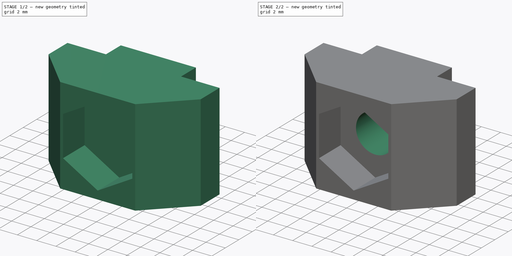
[diagram: build sequence overview — one tinted view per stage of 2, left to right]
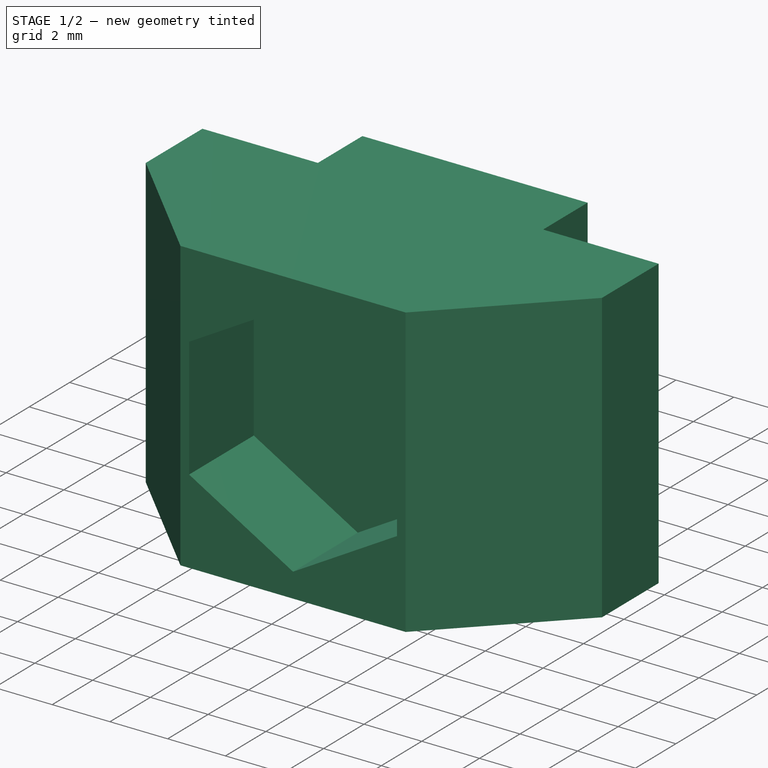
[diagram: stage 1 of 2 — iso view after this stage's code; geometry added in this stage tinted green]
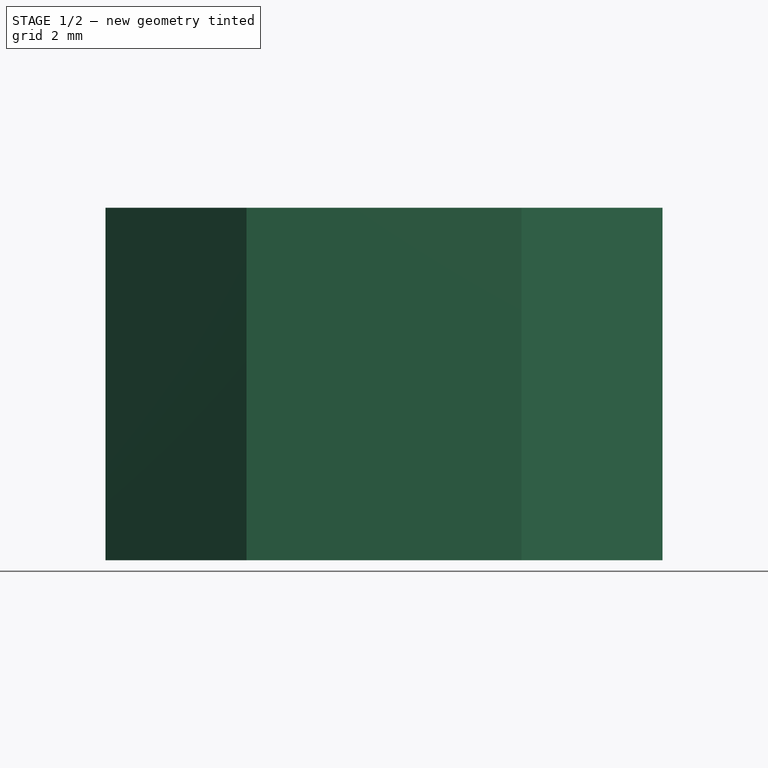
[diagram: stage 1 of 2 — front view after this stage's code; geometry added in this stage tinted green]
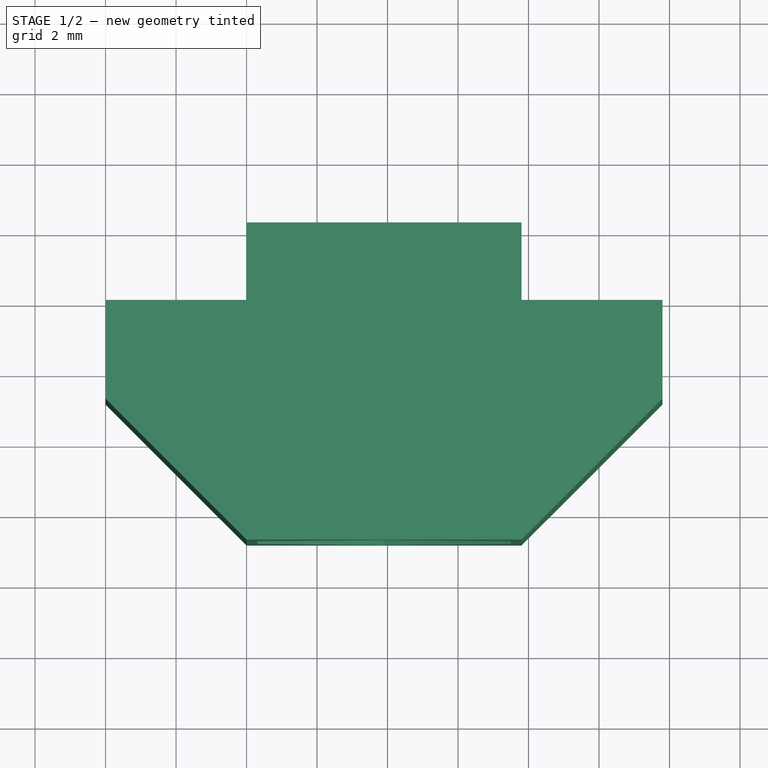
[diagram: stage 1 of 2 — top view after this stage's code; geometry added in this stage tinted green]
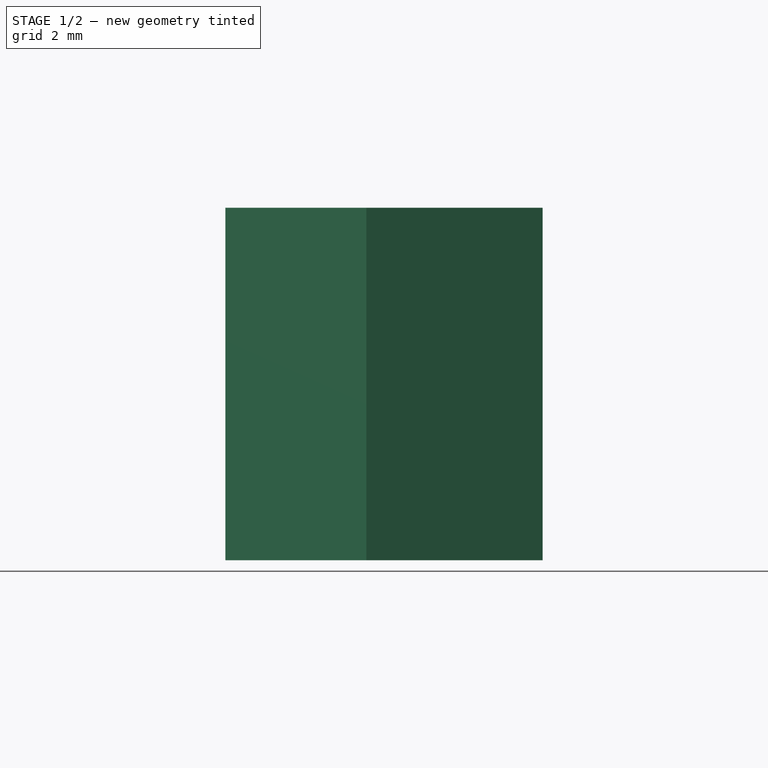
[diagram: stage 1 of 2 — right view after this stage's code; geometry added in this stage tinted green]
FCSTD DOCUMENT  (FreeCAD 0.19R23463 (Git))
Label: 3030_nut_adapter
License: All rights reserved
LicenseURL: http://en.wikipedia.org/wiki/All_rights_reserved
objects: Sketcher::SketchObject×3, PartDesign::Pocket×2, Spreadsheet::Sheet×1, PartDesign::Pad×1, PartDesign::Plane×1, PartDesign::Body×1
note: 11 computed .brp shape members not serialized (recipe doc carries the construction recipe); baked Part::Feature solids carry a one-line shape summary decoded from their .brp

FEATURE [Sketcher::SketchObject] Sketch
  MapMode = 5
  Support = -> [XY_Plane]
  expr: Constraints[18] = 8mm - <<sp>>.B1
  expr: Constraints[30] = 7mm - <<sp>>.B1
  expr: Constraints[2] = 16mm - <<sp>>.B1
  expr: Constraints[5] = 90 + 45
  sketch-geometry (11):
    g0: LineSegment StartX=0 StartY=0 StartZ=0 EndX=0 EndY=-2.8 EndZ=0
    g1: LineSegment StartX=15.8 StartY=-2e-16 StartZ=0 EndX=15.8 EndY=-2.8 EndZ=0
    g2: LineSegment StartX=0 StartY=-2.8 StartZ=0 EndX=4 EndY=-6.8 EndZ=0
    g3: LineSegment StartX=15.8 StartY=-2.8 StartZ=0 EndX=11.8 EndY=-6.8 EndZ=0
    g4: LineSegment StartX=4 StartY=-6.8 StartZ=0 EndX=11.8 EndY=-6.8 EndZ=0
    g5: LineSegment StartX=0 StartY=0 StartZ=0 EndX=4 EndY=0 EndZ=0
    g6: LineSegment StartX=15.8 StartY=-2e-16 StartZ=0 EndX=11.8 EndY=0 EndZ=0
    g7: LineSegment StartX=4 StartY=0 StartZ=0 EndX=11.8 EndY=0 EndZ=0
    g8: LineSegment StartX=4 StartY=0 StartZ=0 EndX=4 EndY=2.2 EndZ=0
    g9: LineSegment StartX=11.8 StartY=0 StartZ=0 EndX=11.8 EndY=2.2 EndZ=0
    g10: LineSegment StartX=11.8 StartY=2.2 StartZ=0 EndX=4 EndY=2.2 EndZ=0
  constraints (31):
    c: Vertical(g0)
    c: Vertical(g1)
    c: DistanceX(g0,g1) = 15.8
    c: Coincident(g2,g0)
    c: Coincident(g3,g1)
    c: Angle(g2,g0) = 2.35619
    c: Angle(g1,g3) = 2.35619
    c: Equal(g0,g1)
    c: Equal(g2,g3)
    c: Coincident(g4,g2)
    c: Coincident(g4,g3)
    c: Coincident(g5,g0)
    c: Horizontal(g5)
    c: Coincident(g6,g1)
    c: Equal(g5,g6)
    c: Coincident(g7,g5)
    c: Coincident(g7,g6)
    c: Horizontal(g7)
    c: DistanceX(g7,g7) = 7.8
    c: Coincident(g8,g5)
    c: Vertical(g8)
    c: Coincident(g9,g6)
    c: Vertical(g9)
    c: Coincident(g10,g9)
    c: Coincident(g10,g8)
    c: Horizontal(g10)
    c: DistanceY(g9,g9) = 2.2
    c: Horizontal(g4)
    c: Coincident(g0,g-1)
    c: Equal(g4,g7)
    c: DistanceY(g3,g1) = 6.8
FEATURE [Spreadsheet::Sheet] Spreadsheet  label="sp"
  cells = A1=Tolerancia; B1==0.2mm
FEATURE [PartDesign::Pad] Pad
  Direction = (1,1,1)
  Length = 10
  Length2 = 100
  Profile = -> Sketch
  Type = 0
FEATURE [PartDesign::Plane] DatumPlane
  Length = 60
  MapMode = 5
  Placement = pos=(0,-6.8,0) rot=(1,0,0;1.5708rad)
  ResizeMode = 0
  Support = -> [Pad]
  Width = 60
FEATURE [Sketcher::SketchObject] Sketch001
  ExternalGeometry = -> [Pad]
  MapMode = 5
  Placement = pos=(0,-6.8,0) rot=(1,0,0;1.5708rad)
  Support = -> [DatumPlane]
  sketch-geometry (9):
    g0: LineSegment StartX=11.5 StartY=7.07846 StartZ=0 EndX=7.9 EndY=9.15692 EndZ=0
    g1: LineSegment StartX=7.9 StartY=9.15692 StartZ=0 EndX=4.3 EndY=7.07846 EndZ=0
    g2: LineSegment StartX=4.3 StartY=7.07846 StartZ=0 EndX=4.3 EndY=2.92154 EndZ=0
    g3: LineSegment StartX=4.3 StartY=2.92154 StartZ=0 EndX=7.9 EndY=0.843078 EndZ=0
    g4: LineSegment StartX=7.9 StartY=0.843078 StartZ=0 EndX=11.5 EndY=2.92154 EndZ=0
    g5: LineSegment StartX=11.5 StartY=2.92154 StartZ=0 EndX=11.5 EndY=7.07846 EndZ=0
    g6: Circle CenterX=7.9 CenterY=5 CenterZ=0 NormalX=0 NormalY=0 NormalZ=1 AngleXU=0 Radius=4.15692
    g7: LineSegment StartX=4 StartY=10 StartZ=0 EndX=11.8 EndY=0 EndZ=0
    g8: LineSegment StartX=11.8 StartY=10 StartZ=0 EndX=4 EndY=0 EndZ=0
  constraints (21):
    c: Coincident(g0,g1)
    c: Coincident(g1,g2)
    c: Coincident(g2,g3)
    c: Coincident(g3,g4)
    c: Coincident(g4,g5)
    c: Coincident(g5,g0)
    c: Equal(g0, g1-g5) x5
    c: PointOnObject(g0,g6)
    c: PointOnObject(g1,g6)
    c: PointOnObject(g2,g6)
    c: PointOnObject(g3,g6)
    c: PointOnObject(g4,g6)
    c: PointOnObject(g5,g6)
    c: Coincident(g7,g-4)
    c: Coincident(g7,g-3)
    c: Coincident(g8,g-3)
    c: Coincident(g8,g-4)
    c: PointOnObject(g6,g7)
    c: PointOnObject(g6,g8)
    c: Vertical(g5)
    c: DistanceX(g1,g0) = 7.2
FEATURE [PartDesign::Pocket] Pocket
  BaseFeature = -> Pad
  Length = 3.2
  Length2 = 100
  Profile = -> Sketch001
  Type = 0
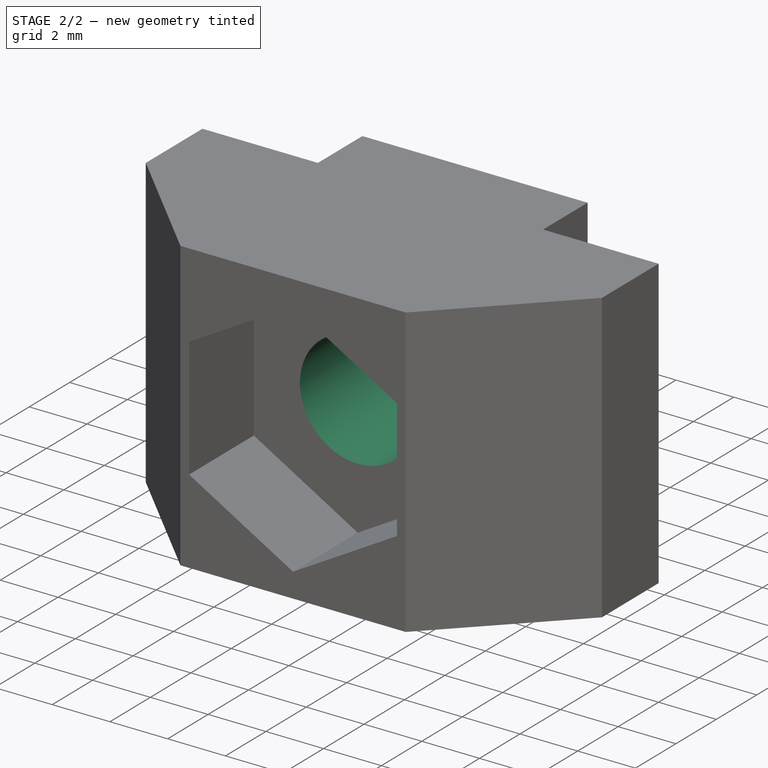
[diagram: stage 2 of 2 — iso view after this stage's code; geometry added in this stage tinted green]
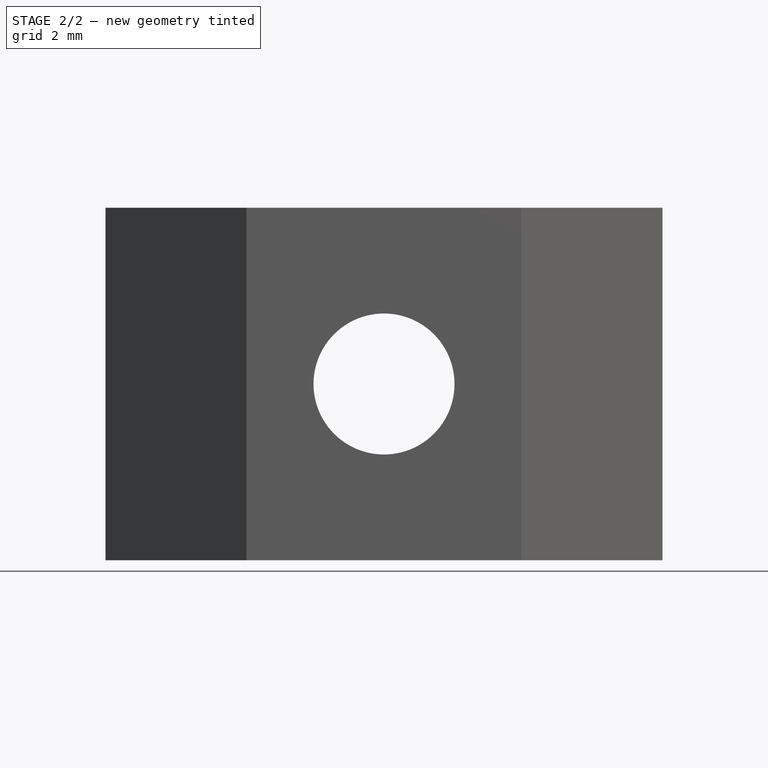
[diagram: stage 2 of 2 — front view after this stage's code; geometry added in this stage tinted green]
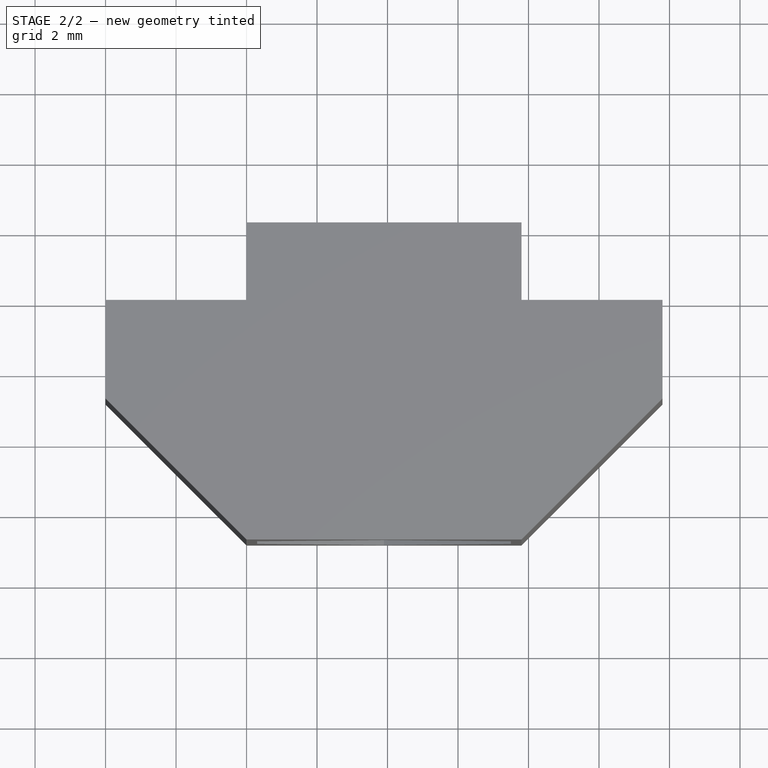
[diagram: stage 2 of 2 — top view after this stage's code; geometry added in this stage tinted green]
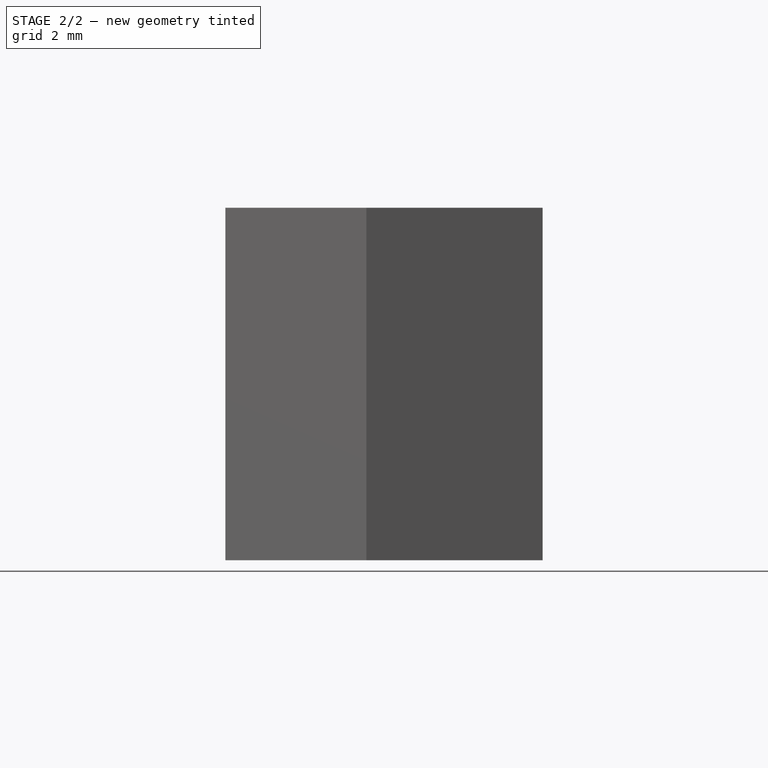
[diagram: stage 2 of 2 — right view after this stage's code; geometry added in this stage tinted green]
FEATURE [Sketcher::SketchObject] Sketch002
  ExternalGeometry = -> [Pocket]
  MapMode = 5
  Placement = pos=(0,-6.8,0) rot=(1,0,0;1.5708rad)
  Support = -> [DatumPlane]
  sketch-geometry (3):
    g0: LineSegment StartX=4 StartY=10 StartZ=0 EndX=11.8 EndY=0 EndZ=0
    g1: LineSegment StartX=11.8 StartY=10 StartZ=0 EndX=4 EndY=0 EndZ=0
    g2: Circle CenterX=7.9 CenterY=5 CenterZ=0 NormalX=0 NormalY=0 NormalZ=1 AngleXU=0 Radius=2
  constraints (7):
    c: Coincident(g0,g-3)
    c: Coincident(g0,g-4)
    c: Coincident(g1,g-4)
    c: Coincident(g1,g-3)
    c: PointOnObject(g2,g1)
    c: PointOnObject(g2,g0)
    c: Diameter(g2) = 4
FEATURE [PartDesign::Pocket] Pocket001
  BaseFeature = -> Pocket
  Length = 5
  Length2 = 100
  Profile = -> Sketch002
  Type = 1
FEATURE [PartDesign::Body] Body
  Group = -> [Sketch,Pad,DatumPlane,Sketch001,Pocket,Sketch002,Pocket001]
  Origin = -> Origin
  Tip = -> Pocket001
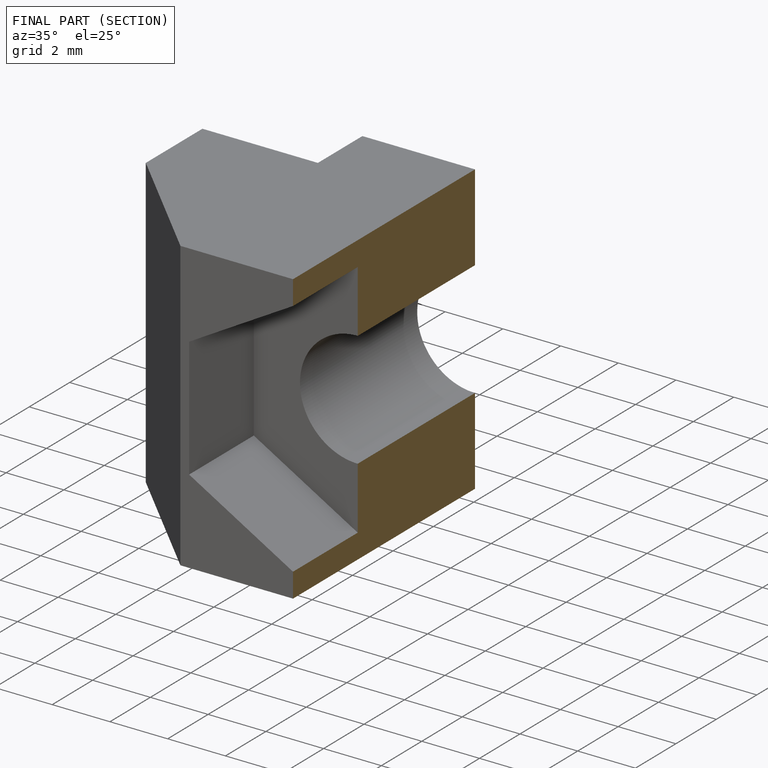
[diagram: finished part — half-section view (interior)]
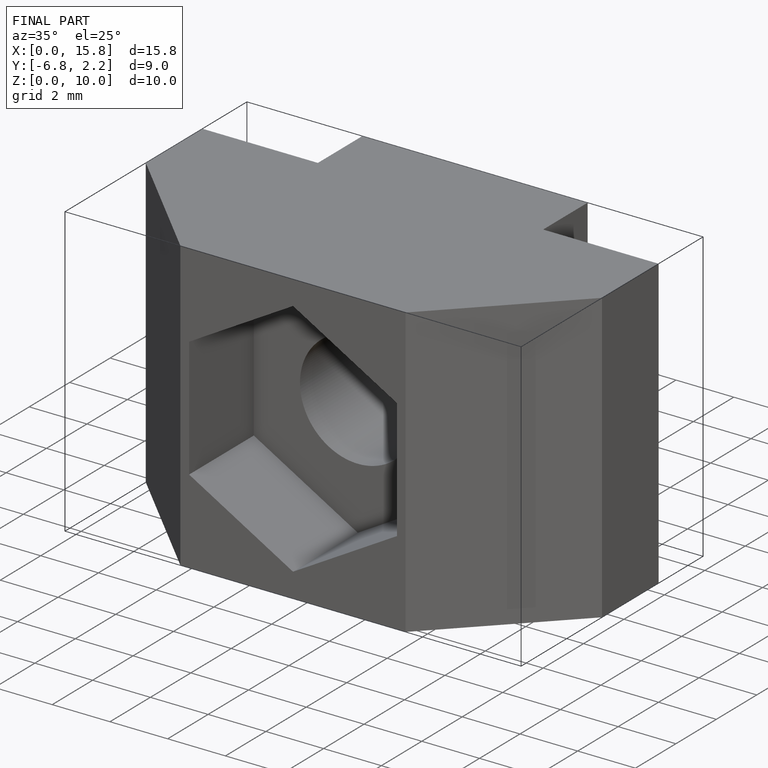
[diagram: finished part — iso view with bounding-box wireframe]
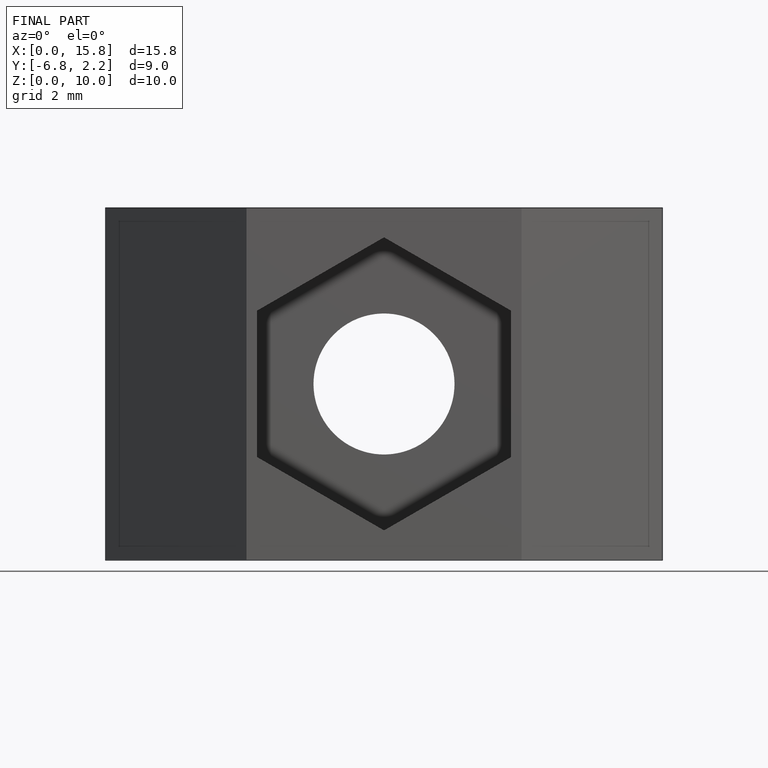
[diagram: finished part — front view with bounding-box wireframe]
